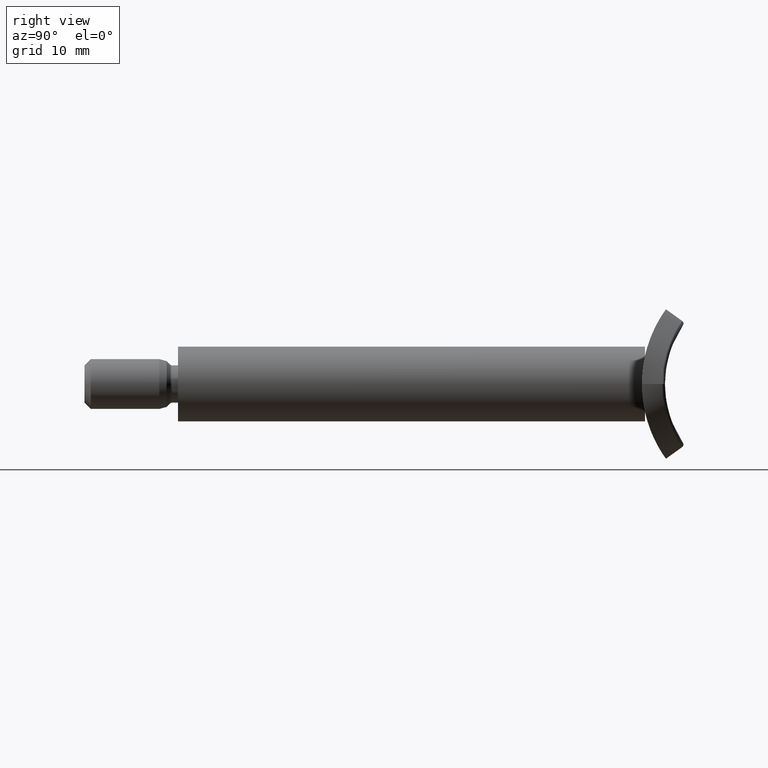
[diagram: clean part render]
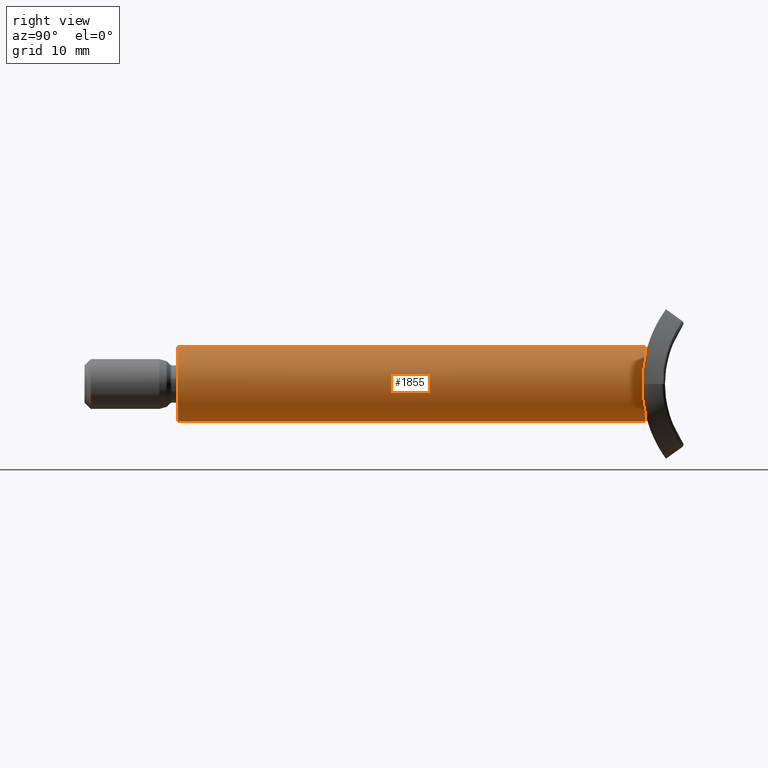
[diagram: same view with one face highlighted and labeled with its STEP entity id]
A machine part, right view. The second image highlights one B-rep face of the part: STEP entity #1855.
In plain terms, the highlighted cylindrical surface (partial cylindrical patch) has radius 6 mm, axis along (-0, -1, -0).
Its self-contained STEP definition (entity closure, byte-faithful):
#787 = VECTOR ( 'NONE', #10733, 1000.000000000000000 ) ;
#840 = EDGE_CURVE ( 'NONE', #4189, #6228, #3906, .T. ) ;
#986 = VERTEX_POINT ( 'NONE', #5509 ) ;
#1855 = ADVANCED_FACE ( 'NONE', ( #6592 ), #6963, .T. ) ;
#2198 = AXIS2_PLACEMENT_3D ( 'NONE', #3460, #4362, #12464 ) ;
#2891 = CARTESIAN_POINT ( 'NONE',  ( 0.0000000000000000000, 0.0000000000000000000, -6.000000000000010700 ) ) ;
#2912 = EDGE_CURVE ( 'NONE', #986, #6192, #9486, .T. ) ;
#2990 = DIRECTION ( 'NONE',  ( -0.0000000000000000000, -1.000000000000000000, -0.0000000000000000000 ) ) ;
#3272 = ORIENTED_EDGE ( 'NONE', *, *, #9989, .F. ) ;
#3460 = CARTESIAN_POINT ( 'NONE',  ( 0.0000000000000000000, 74.99999999999998600, 0.0000000000000000000 ) ) ;
#3906 = LINE ( 'NONE', #8546, #787 ) ;
#4128 = AXIS2_PLACEMENT_3D ( 'NONE', #5682, #9281, #9132 ) ;
#4189 = VERTEX_POINT ( 'NONE', #5666 ) ;
#4362 = DIRECTION ( 'NONE',  ( -0.0000000000000000000, -1.000000000000000000, -0.0000000000000000000 ) ) ;
#4762 = ORIENTED_EDGE ( 'NONE', *, *, #2912, .F. ) ;
#4769 = CIRCLE ( 'NONE', #13508, 6.000000000000000000 ) ;
#5509 = CARTESIAN_POINT ( 'NONE',  ( 0.0000000000000000000, 74.99999999999998600, -6.000000000000000000 ) ) ;
#5666 = CARTESIAN_POINT ( 'NONE',  ( 7.347880794884119700E-016, 74.99999999999998600, 6.000000000000000000 ) ) ;
#5682 = CARTESIAN_POINT ( 'NONE',  ( 0.0000000000000000000, 0.0000000000000000000, 0.0000000000000000000 ) ) ;
#6192 = VERTEX_POINT ( 'NONE', #2891 ) ;
#6228 = VERTEX_POINT ( 'NONE', #8698 ) ;
#6592 = FACE_OUTER_BOUND ( 'NONE', #14281, .T. ) ;
#6963 = CYLINDRICAL_SURFACE ( 'NONE', #4128, 6.000000000000000000 ) ;
#7147 = ORIENTED_EDGE ( 'NONE', *, *, #12687, .T. ) ;
#7706 = CARTESIAN_POINT ( 'NONE',  ( 0.0000000000000000000, 0.0000000000000000000, 0.0000000000000000000 ) ) ;
#8048 = DIRECTION ( 'NONE',  ( -0.0000000000000000000, -1.000000000000000000, -0.0000000000000000000 ) ) ;
#8546 = CARTESIAN_POINT ( 'NONE',  ( 7.347880794884119700E-016, 0.0000000000000000000, 6.000000000000000000 ) ) ;
#8698 = CARTESIAN_POINT ( 'NONE',  ( 7.347880794884131600E-016, 0.0000000000000000000, 6.000000000000010700 ) ) ;
#8903 = DIRECTION ( 'NONE',  ( 0.0000000000000000000, 0.0000000000000000000, -1.000000000000000000 ) ) ;
#9129 = CARTESIAN_POINT ( 'NONE',  ( 0.0000000000000000000, 0.0000000000000000000, -6.000000000000000000 ) ) ;
#9132 = DIRECTION ( 'NONE',  ( 0.0000000000000000000, 0.0000000000000000000, -1.000000000000000000 ) ) ;
#9281 = DIRECTION ( 'NONE',  ( -0.0000000000000000000, -1.000000000000000000, -0.0000000000000000000 ) ) ;
#9486 = LINE ( 'NONE', #9129, #9648 ) ;
#9648 = VECTOR ( 'NONE', #8048, 1000.000000000000000 ) ;
#9989 = EDGE_CURVE ( 'NONE', #6192, #6228, #4769, .T. ) ;
#10733 = DIRECTION ( 'NONE',  ( -0.0000000000000000000, -1.000000000000000000, -0.0000000000000000000 ) ) ;
#11222 = CIRCLE ( 'NONE', #2198, 6.000000000000000000 ) ;
#12464 = DIRECTION ( 'NONE',  ( 0.0000000000000000000, 0.0000000000000000000, -1.000000000000000000 ) ) ;
#12687 = EDGE_CURVE ( 'NONE', #986, #4189, #11222, .T. ) ;
#13508 = AXIS2_PLACEMENT_3D ( 'NONE', #7706, #2990, #8903 ) ;
#14281 = EDGE_LOOP ( 'NONE', ( #7147, #14870, #3272, #4762 ) ) ;
#14870 = ORIENTED_EDGE ( 'NONE', *, *, #840, .T. ) ;